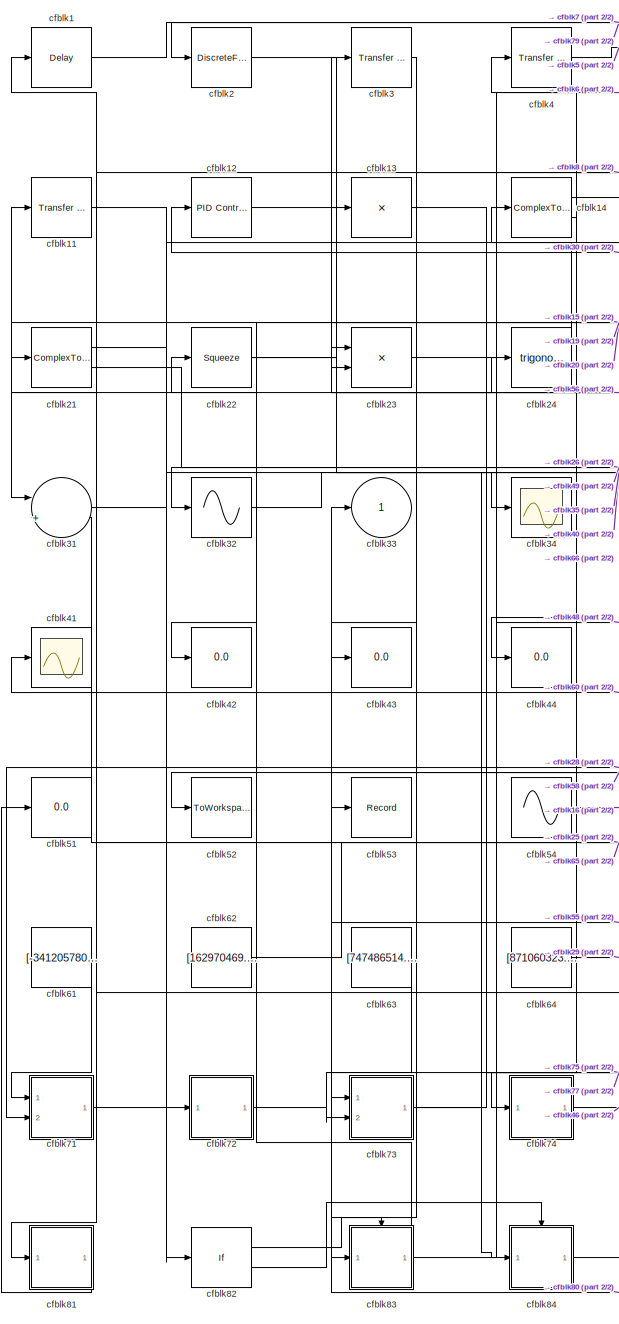
[diagram: root canvas - part 1/2, left side, full height]
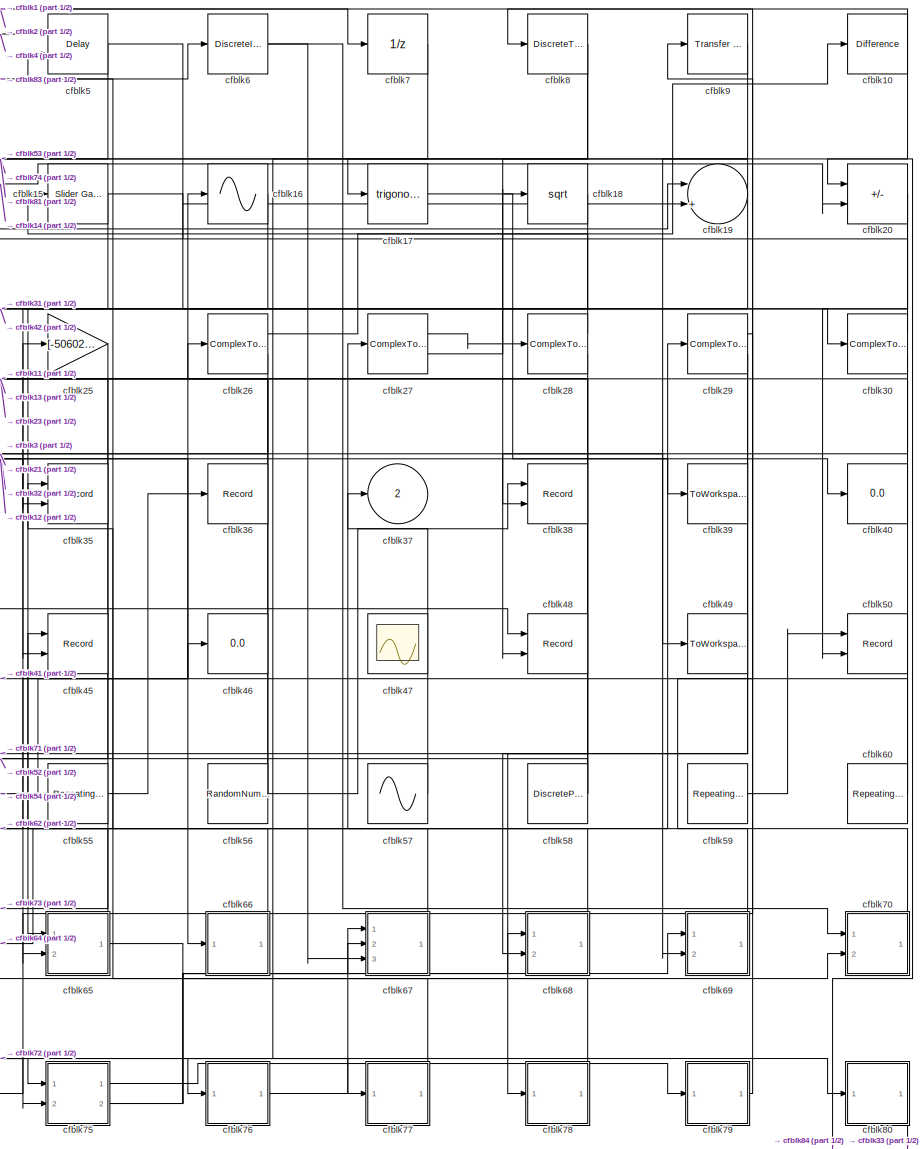
[diagram: root canvas - part 2/2, right side, full height]
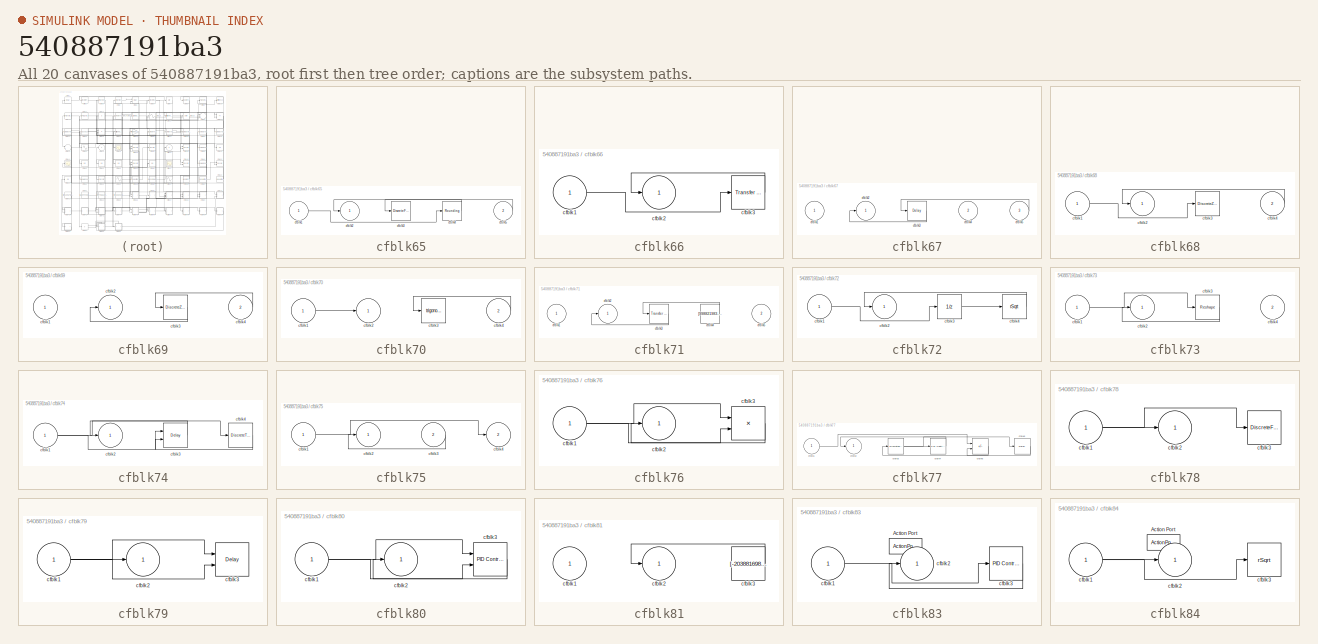
[diagram: thumbnail index - all 20 canvases of the model, root first then tree order]
MODEL slx_540887191ba3
KIND model
CONFIG AbsTol = auto
CONFIG EnableMultiTasking = off
CONFIG FixedStep = auto
CONFIG MaxStep = auto
CONFIG MinStep = auto
CONFIG RelTol = 1e-3
CONFIG SampleTimeConstraint = Unconstrained
CONFIG SolverName = VariableStepAuto
CONFIG StartTime = 0.0
CONFIG StopTime = 10.0
BLOCK [Delay] cfblk1
  InputPortMap = u0
  Ports = [1, 1]
  SampleTime = 1
BLOCK [Reference] cfblk10  REF=simulink/Discrete/Difference
  Ports = [1, 1]
  SourceBlock = simulink/Discrete/Difference
  SourceProductBaseCode = SL
  SourceType = Difference
BLOCK [Reference] cfblk11  REF=simulink/Discrete/Transfer Fcn
Lead or Lag
  Ports = [1, 1]
  SourceBlock = simulink/Discrete/Transfer Fcn\nLead or Lag
  SourceProductBaseCode = SL
  SourceType = Lead or Lag Compensator
BLOCK [Reference] cfblk12  REF=slpidlib/PID Controller
  Ports = [1, 1]
  SourceBlock = slpidlib/PID Controller
  SourceProductBaseCode = SL
  SourceType = PID 1dof
BLOCK [Product] cfblk13
  Inputs = *
  Ports = [1, 1]
BLOCK [ComplexToRealImag] cfblk14
  Ports = [1, 2]
BLOCK [Reference] cfblk15  REF=simulink/Math
Operations/Slider
Gain
  Ports = [1, 1]
  SourceBlock = simulink/Math\nOperations/Slider\nGain
  SourceProductBaseCode = SL
  SourceType = Slider Gain
BLOCK [Sin] cfblk16
  Ports = [1, 1]
  SampleTime = 0
  TimeSource = Use external signal
BLOCK [Trigonometry] cfblk17
  Ports = [1, 1]
BLOCK [Sqrt] cfblk18
BLOCK [Sum] cfblk19
  Inputs = |++
  Ports = [2, 1]
BLOCK [DiscreteFilter] cfblk2
  InputPortMap = u0
  Ports = [1, 1]
  SampleTime = 1
BLOCK [Sum] cfblk20
  IconShape = rectangular
  Inputs = -+
  Ports = [2, 1]
BLOCK [ComplexToRealImag] cfblk21
  Ports = [1, 2]
BLOCK [Squeeze] cfblk22
BLOCK [Product] cfblk23
  Inputs = **
  Ports = [2, 1]
BLOCK [Trigonometry] cfblk24
  Ports = [1, 1]
BLOCK [Gain] cfblk25
  Gain = [-506024098.081453]
BLOCK [ComplexToMagnitudeAngle] cfblk26
  Ports = [1, 2]
BLOCK [ComplexToRealImag] cfblk27
  Ports = [1, 2]
BLOCK [ComplexToRealImag] cfblk28
  Ports = [1, 2]
BLOCK [ComplexToMagnitudeAngle] cfblk29
  Ports = [1, 2]
BLOCK [Reference] cfblk3  REF=simulink/Discrete/Transfer Fcn
Lead or Lag
  Ports = [1, 1]
  SourceBlock = simulink/Discrete/Transfer Fcn\nLead or Lag
  SourceProductBaseCode = SL
  SourceType = Lead or Lag Compensator
BLOCK [ComplexToRealImag] cfblk30
  Ports = [1, 2]
BLOCK [Sum] cfblk31
  Inputs = |++
  Ports = [2, 1]
BLOCK [Sin] cfblk32
  Ports = [1, 1]
  SampleTime = 0
  TimeSource = Use external signal
BLOCK [Outport] cfblk33
BLOCK [Scope] cfblk34
  Floating = off
  NumInputPorts = 1
  Ports = [1]
BLOCK [Record] cfblk35
  CompatibilityTag = XY
  FileSettingsInternal = {"entries":[{"content":{"excelSettings":{"content":{},"type":"Streamout.ExcelSettings"}},"type":"Streamout.FileSettingStorage","uuid":"784594ac-7453-4d0e-99dc-230d746005aa"}],"packageUris":["http://schema.mathworks.com/mf0/streamout_blocks/R2020a"],"version":"1.0"}
  Layout = [1 1]
  Ports = [2]
  SignalsInternal = {"entries":[{"content":{"signals":[{"content":{"blockPath":["sampleModel240/cfblk35"],"channel":[],"dimensions":[1],"domain":"sampleModel240/cfblk35","lineColor":"#a2142f","plots":[1],"port":1,"sid":[""],"signalID":9509,"signalName":"cfblk78"},"type":"RecordBlkView.Signal","uuid":"67d133b5-3512-448e-9778-6e57d9e23972"},{"content":{"blockPath":["sampleModel240/cfblk35"],"channel":[],"dimensions":[1...<+383ch>
  VisualizationBindings = {"xyplotplugin":{"info":[{"series":[{"bindingParametersList":[{"parameter":"X-Axis","signalID":9509,"signalName":"cfblk78"},{"parameter":"Y-Axis","signalID":9513,"signalName":"cfblk11"}],"seriesID":32095}],"subplotID":1}]}}
BLOCK [Record] cfblk36
  FileSettingsInternal = {"entries":[{"content":{"excelSettings":{"content":{},"type":"Streamout.ExcelSettings"}},"type":"Streamout.FileSettingStorage","uuid":"b1a04026-dae7-46c6-8295-c1d018ed7cb2"}],"packageUris":["http://schema.mathworks.com/mf0/streamout_blocks/R2020a"],"version":"1.0"}
  Ports = [1]
  SignalsInternal = {"entries":[{"content":{"signals":[{"content":{"blockPath":["sampleModel240/cfblk36"],"channel":[],"dimensions":[1],"domain":"sampleModel240/cfblk36","lineColor":"#fe330a","plots":[1],"port":1,"sid":[""],"signalID":9517,"signalName":"cfblk55"},"type":"RecordBlkView.Signal","uuid":"e81319b0-4fc9-46b2-b889-44dd591dc2c1"}]},"type":"RecordBlkView.InputSignals","uuid":"d2d26a79-a2f7-4346-9dc2-1209bdb2f...<+97ch>
  VisualizationBindings = {"sparklinesplugin":{"info":[{"bindingParametersList":[],"subplotID":1}]}}
BLOCK [Outport] cfblk37
  Port = 2
BLOCK [Record] cfblk38
  CompatibilityTag = XY
  FileSettingsInternal = {"entries":[{"content":{"excelSettings":{"content":{},"type":"Streamout.ExcelSettings"}},"type":"Streamout.FileSettingStorage","uuid":"2b43e5d5-5da2-4669-81f9-69979c1bbe93"}],"packageUris":["http://schema.mathworks.com/mf0/streamout_blocks/R2020a"],"version":"1.0"}
  Layout = [1 1]
  Ports = [2]
  SignalsInternal = {"entries":[{"content":{"signals":[{"content":{"blockPath":["sampleModel240/cfblk38"],"channel":[],"dimensions":[1],"domain":"sampleModel240/cfblk38","lineColor":"#a2142f","plots":[1],"port":1,"sid":[""],"signalID":9521,"signalName":"cfblk56"},"type":"RecordBlkView.Signal","uuid":"72868b1f-4b0c-4be8-a2f7-40a7ef09af74"},{"content":{"blockPath":["sampleModel240/cfblk38"],"channel":[],"dimensions":[1...<+385ch>
  VisualizationBindings = {"xyplotplugin":{"info":[{"series":[{"bindingParametersList":[{"parameter":"X-Axis","signalID":9521,"signalName":"cfblk56"},{"parameter":"Y-Axis","signalID":9525,"signalName":"cfblk30:2"}],"seriesID":59541}],"subplotID":1}]}}
BLOCK [ToWorkspace] cfblk39
  FixptAsFi = on
  MaxDataPoints = inf
  Ports = [1]
  SampleTime = -1
  SaveFormat = Timeseries
  VariableName = ehjtfzd
BLOCK [Reference] cfblk4  REF=simulink/Discrete/Transfer Fcn
First Order
  Ports = [1, 1]
  SourceBlock = simulink/Discrete/Transfer Fcn\nFirst Order
  SourceProductBaseCode = SL
  SourceType = First Order Transfer Fcn
BLOCK [Display] cfblk40
  Decimation = 1
  Ports = [1]
BLOCK [Scope] cfblk41
  Floating = off
  NumInputPorts = 1
  Ports = [1]
BLOCK [Display] cfblk42
  Decimation = 1
  Ports = [1]
BLOCK [Display] cfblk43
  Decimation = 1
  Ports = [1]
BLOCK [Display] cfblk44
  Decimation = 1
  Ports = [1]
BLOCK [Record] cfblk45
  CompatibilityTag = XY
  FileSettingsInternal = {"entries":[{"content":{"excelSettings":{"content":{},"type":"Streamout.ExcelSettings"}},"type":"Streamout.FileSettingStorage","uuid":"011ed913-79cb-4d04-904d-059d5477b360"}],"packageUris":["http://schema.mathworks.com/mf0/streamout_blocks/R2020a"],"version":"1.0"}
  Layout = [1 1]
  Ports = [2]
  SignalsInternal = {"entries":[{"content":{"signals":[{"content":{"blockPath":["sampleModel240/cfblk45"],"channel":[],"dimensions":[1],"domain":"sampleModel240/cfblk45","lineColor":"#a2142f","plots":[1],"port":1,"sid":[""],"signalID":9529,"signalName":"cfblk67"},"type":"RecordBlkView.Signal","uuid":"2900f96a-5edd-414d-b1fc-4191916f856c"},{"content":{"blockPath":["sampleModel240/cfblk45"],"channel":[],"dimensions":[1...<+383ch>
  VisualizationBindings = {"xyplotplugin":{"info":[{"series":[{"bindingParametersList":[{"parameter":"X-Axis","signalID":9529,"signalName":"cfblk67"},{"parameter":"Y-Axis","signalID":9533,"signalName":"cfblk18"}],"seriesID":51705}],"subplotID":1}]}}
BLOCK [Display] cfblk46
  Decimation = 1
  Ports = [1]
BLOCK [Scope] cfblk47
  Floating = on
  NumInputPorts = 1
  Ports = []
BLOCK [Record] cfblk48
  CompatibilityTag = XY
  FileSettingsInternal = {"entries":[{"content":{"excelSettings":{"content":{},"type":"Streamout.ExcelSettings"}},"type":"Streamout.FileSettingStorage","uuid":"3f33d199-868f-4f88-8702-0c4e5cfbf297"}],"packageUris":["http://schema.mathworks.com/mf0/streamout_blocks/R2020a"],"version":"1.0"}
  Layout = [1 1]
  Ports = [2]
  SignalsInternal = {"entries":[{"content":{"signals":[{"content":{"blockPath":["sampleModel240/cfblk48"],"channel":[],"dimensions":[1],"domain":"sampleModel240/cfblk48","lineColor":"#a2142f","plots":[1],"port":1,"sid":[""],"signalID":9537,"signalName":"cfblk23"},"type":"RecordBlkView.Signal","uuid":"ef2c7adb-1fb0-4c30-94cd-a61b1754e238"},{"content":{"blockPath":["sampleModel240/cfblk48"],"channel":[],"dimensions":[1...<+382ch>
  VisualizationBindings = {"xyplotplugin":{"info":[{"series":[{"bindingParametersList":[{"parameter":"X-Axis","signalID":9537,"signalName":"cfblk23"},{"parameter":"Y-Axis","signalID":9541,"signalName":"cfblk8"}],"seriesID":9547}],"subplotID":1}]}}
BLOCK [ToWorkspace] cfblk49
  FixptAsFi = on
  MaxDataPoints = inf
  Ports = [1]
  SampleTime = -1
  SaveFormat = Timeseries
  VariableName = egvxahi
BLOCK [Delay] cfblk5
  InputPortMap = u0,e6
  Ports = [2, 1]
  SampleTime = 1
  ShowEnablePort = on
BLOCK [Record] cfblk50
  CompatibilityTag = XY
  FileSettingsInternal = {"entries":[{"content":{"excelSettings":{"content":{},"type":"Streamout.ExcelSettings"}},"type":"Streamout.FileSettingStorage","uuid":"a7323de5-4913-44b3-ba6b-b7b4a20015af"}],"packageUris":["http://schema.mathworks.com/mf0/streamout_blocks/R2020a"],"version":"1.0"}
  Layout = [1 1]
  Ports = [2]
  SignalsInternal = {"entries":[{"content":{"signals":[{"content":{"blockPath":["sampleModel240/cfblk50"],"channel":[],"dimensions":[1],"domain":"sampleModel240/cfblk50","lineColor":"#a2142f","plots":[1],"port":1,"sid":[""],"signalID":9545,"signalName":"cfblk59"},"type":"RecordBlkView.Signal","uuid":"c6728527-33a3-402b-b809-e9ba282c6234"},{"content":{"blockPath":["sampleModel240/cfblk50"],"channel":[],"dimensions":[1...<+383ch>
  VisualizationBindings = {"xyplotplugin":{"info":[{"series":[{"bindingParametersList":[{"parameter":"X-Axis","signalID":9545,"signalName":"cfblk59"},{"parameter":"Y-Axis","signalID":9549,"signalName":"cfblk20"}],"seriesID":24204}],"subplotID":1}]}}
BLOCK [Display] cfblk51
  Decimation = 1
  Ports = [1]
BLOCK [ToWorkspace] cfblk52
  FixptAsFi = on
  MaxDataPoints = inf
  Ports = [1]
  SampleTime = -1
  SaveFormat = Timeseries
  VariableName = amkuwht
BLOCK [Record] cfblk53
  FileSettingsInternal = {"entries":[{"content":{"excelSettings":{"content":{},"type":"Streamout.ExcelSettings"}},"type":"Streamout.FileSettingStorage","uuid":"062d2fcb-1db7-4794-8512-aa17b3a50389"}],"packageUris":["http://schema.mathworks.com/mf0/streamout_blocks/R2020a"],"version":"1.0"}
  Ports = [1]
  SignalsInternal = {"entries":[{"content":{"signals":[{"content":{"blockPath":["sampleModel240/cfblk53"],"channel":[],"dimensions":[1],"domain":"sampleModel240/cfblk53","lineColor":"#139fff","plots":[1],"port":1,"sid":[""],"signalID":9553,"signalName":"cfblk5"},"type":"RecordBlkView.Signal","uuid":"004bb81a-6ea3-4587-b6bd-6712f3703243"}]},"type":"RecordBlkView.InputSignals","uuid":"4f08d72a-b7cb-43bf-9134-c95f940a5c...<+96ch>
  VisualizationBindings = {"sparklinesplugin":{"info":[{"bindingParametersList":[],"subplotID":1}]}}
BLOCK [Sin] cfblk54
  Amplitude = [927282513.188277]
  Bias = [-745493718.771142]
  Ports = [0, 1]
  SampleTime = 0
BLOCK [Reference] cfblk55  REF=simulink/Sources/Repeating
Sequence
Interpolated
  Ports = [0, 1]
  SourceBlock = simulink/Sources/Repeating\nSequence\nInterpolated
  SourceProductBaseCode = SL
  SourceType = Repeating Sequence Interpolated
BLOCK [RandomNumber] cfblk56
  Mean = [-10045.091864]
  SampleTime = 0.1
  Seed = [426711266.000000]
  Variance = [72480.359942]
BLOCK [Sin] cfblk57
  Amplitude = [314477199.179577]
  Bias = [-113427137.959207]
  Ports = [0, 1]
  SampleTime = 0
BLOCK [DiscretePulseGenerator] cfblk58
  Amplitude = [121664850.347592]
  Period = [59251250.117236]
  PhaseDelay = [3.000000]
  Ports = [0, 1]
  PulseType = Time based
  PulseWidth = 5
BLOCK [Reference] cfblk59  REF=simulink/Sources/Repeating
Sequence
Interpolated
  Ports = [0, 1]
  SourceBlock = simulink/Sources/Repeating\nSequence\nInterpolated
  SourceProductBaseCode = SL
  SourceType = Repeating Sequence Interpolated
BLOCK [DiscreteIntegrator] cfblk6
  ICPrevOutput = DiscIntNeverNeededParam
  ICPrevScaledInput = DiscIntNeverNeededParam
  InitialConditionSetting = Auto
  Ports = [1, 1]
BLOCK [Reference] cfblk60  REF=simulink/Sources/Repeating
Sequence
Interpolated
  Ports = [0, 1]
  SourceBlock = simulink/Sources/Repeating\nSequence\nInterpolated
  SourceProductBaseCode = SL
  SourceType = Repeating Sequence Interpolated
BLOCK [Constant] cfblk61
  SampleTime = 1
  Value = [-341205780.351297]
BLOCK [Constant] cfblk62
  SampleTime = 1
  Value = [162970469.814990]
BLOCK [Constant] cfblk63
  SampleTime = 1
  Value = [747486514.530427]
BLOCK [Constant] cfblk64
  SampleTime = 1
  Value = [871060323.117650]
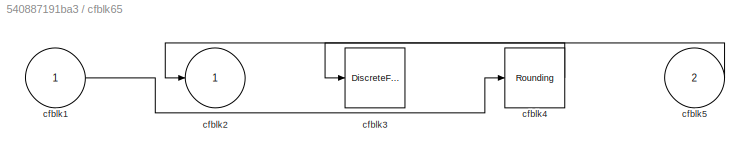
BLOCK [SubSystem] cfblk65
  Ports = [2, 1]
  RequestExecContextInheritance = off
BLOCK [Inport] cfblk65/cfblk1
BLOCK [Outport] cfblk65/cfblk2
BLOCK [DiscreteFir] cfblk65/cfblk3
  InputPortMap = u0
  OutputPortMap = o0
  Ports = [1, 1]
  SampleTime = 1
BLOCK [Rounding] cfblk65/cfblk4
BLOCK [Inport] cfblk65/cfblk5
  Port = 2
BLOCK [SubSystem] cfblk66
  Ports = [1, 1]
  RequestExecContextInheritance = off
BLOCK [Inport] cfblk66/cfblk1
BLOCK [Outport] cfblk66/cfblk2
BLOCK [Reference] cfblk66/cfblk3  REF=simulink/Discrete/Transfer Fcn
Lead or Lag
  Ports = [1, 1]
  SourceBlock = simulink/Discrete/Transfer Fcn\nLead or Lag
  SourceProductBaseCode = SL
  SourceType = Lead or Lag Compensator
BLOCK [SubSystem] cfblk67
  Ports = [3, 1]
  RequestExecContextInheritance = off
BLOCK [Inport] cfblk67/cfblk1
BLOCK [Outport] cfblk67/cfblk2
BLOCK [Delay] cfblk67/cfblk3
  InputPortMap = u0
  Ports = [1, 1]
  SampleTime = 1
BLOCK [Inport] cfblk67/cfblk4
  Port = 2
BLOCK [Inport] cfblk67/cfblk5
  Port = 3
BLOCK [SubSystem] cfblk68
  Ports = [2, 1]
  RequestExecContextInheritance = off
BLOCK [Inport] cfblk68/cfblk1
BLOCK [Outport] cfblk68/cfblk2
BLOCK [DiscreteZeroPole] cfblk68/cfblk3
  Gain = 1
  Poles = [0 0.5]
BLOCK [Inport] cfblk68/cfblk4
  Port = 2
BLOCK [SubSystem] cfblk69
  Ports = [2, 1]
  RequestExecContextInheritance = off
BLOCK [Inport] cfblk69/cfblk1
BLOCK [Outport] cfblk69/cfblk2
BLOCK [DiscreteZeroPole] cfblk69/cfblk3
  Gain = 1
  Poles = [0 0.5]
BLOCK [Inport] cfblk69/cfblk4
  Port = 2
BLOCK [UnitDelay] cfblk7
  HasFrameUpgradeWarning = on
BLOCK [SubSystem] cfblk70
  Ports = [2, 1]
  RequestExecContextInheritance = off
BLOCK [Inport] cfblk70/cfblk1
BLOCK [Outport] cfblk70/cfblk2
BLOCK [Trigonometry] cfblk70/cfblk3
  Ports = [1, 1]
BLOCK [Inport] cfblk70/cfblk4
  Port = 2
BLOCK [SubSystem] cfblk71
  Ports = [2, 1]
  RequestExecContextInheritance = off
BLOCK [Inport] cfblk71/cfblk1
BLOCK [Outport] cfblk71/cfblk2
BLOCK [Reference] cfblk71/cfblk3  REF=simulink/Discrete/Transfer Fcn
Lead or Lag
  Ports = [1, 1]
  SourceBlock = simulink/Discrete/Transfer Fcn\nLead or Lag
  SourceProductBaseCode = SL
  SourceType = Lead or Lag Compensator
BLOCK [Constant] cfblk71/cfblk4
  SampleTime = 1
  Value = [998821983.566058]
BLOCK [Inport] cfblk71/cfblk5
  Port = 2
BLOCK [SubSystem] cfblk72
  Ports = [1, 1]
  RequestExecContextInheritance = off
BLOCK [Inport] cfblk72/cfblk1
BLOCK [Outport] cfblk72/cfblk2
BLOCK [UnitDelay] cfblk72/cfblk3
  HasFrameUpgradeWarning = on
BLOCK [Sqrt] cfblk72/cfblk4
  AlgorithmType = Newton-Raphson
  Operator = rSqrt
BLOCK [SubSystem] cfblk73
  Ports = [2, 1]
  RequestExecContextInheritance = off
BLOCK [Inport] cfblk73/cfblk1
BLOCK [Outport] cfblk73/cfblk2
BLOCK [Reshape] cfblk73/cfblk3
  Ports = [1, 1]
BLOCK [Inport] cfblk73/cfblk4
  Port = 2
BLOCK [SubSystem] cfblk74
  Ports = [1, 1]
  RequestExecContextInheritance = off
BLOCK [Inport] cfblk74/cfblk1
BLOCK [Outport] cfblk74/cfblk2
BLOCK [Delay] cfblk74/cfblk3
  DelayLengthSource = Input port
  InputPortMap = u0,p1
  Ports = [2, 1]
  SampleTime = 1
BLOCK [DiscreteTransferFcn] cfblk74/cfblk4
  InputPortMap = u0
  Ports = [1, 1]
  SampleTime = 1
BLOCK [SubSystem] cfblk75
  Ports = [2, 2]
  RequestExecContextInheritance = off
BLOCK [Inport] cfblk75/cfblk1
BLOCK [Outport] cfblk75/cfblk2
BLOCK [Inport] cfblk75/cfblk3
  Port = 2
BLOCK [Outport] cfblk75/cfblk4
  Port = 2
BLOCK [SubSystem] cfblk76
  Ports = [1, 1]
  RequestExecContextInheritance = off
BLOCK [Inport] cfblk76/cfblk1
BLOCK [Outport] cfblk76/cfblk2
BLOCK [Product] cfblk76/cfblk3
  Inputs = **
  Ports = [2, 1]
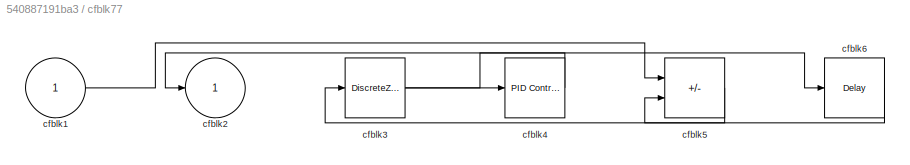
BLOCK [SubSystem] cfblk77
  Ports = [1, 1]
  RequestExecContextInheritance = off
BLOCK [Inport] cfblk77/cfblk1
BLOCK [Outport] cfblk77/cfblk2
BLOCK [DiscreteZeroPole] cfblk77/cfblk3
  Gain = 1
  Poles = [0 0.5]
BLOCK [Reference] cfblk77/cfblk4  REF=slpidlib/PID Controller
  Ports = [1, 1]
  SourceBlock = slpidlib/PID Controller
  SourceProductBaseCode = SL
  SourceType = PID 1dof
BLOCK [Sum] cfblk77/cfblk5
  IconShape = rectangular
  Inputs = --
  Ports = [2, 1]
BLOCK [Delay] cfblk77/cfblk6
  InputPortMap = u0
  Ports = [1, 1]
  SampleTime = 1
BLOCK [SubSystem] cfblk78
  Ports = [1, 1]
  RequestExecContextInheritance = off
BLOCK [Inport] cfblk78/cfblk1
BLOCK [Outport] cfblk78/cfblk2
BLOCK [DiscreteFir] cfblk78/cfblk3
  InputPortMap = u0
  OutputPortMap = o0
  Ports = [1, 1]
  SampleTime = 1
BLOCK [SubSystem] cfblk79
  Ports = [1, 1]
  RequestExecContextInheritance = off
BLOCK [Inport] cfblk79/cfblk1
BLOCK [Outport] cfblk79/cfblk2
BLOCK [Delay] cfblk79/cfblk3
  DelayLengthSource = Input port
  InputPortMap = u0,p1
  Ports = [2, 1]
  SampleTime = 1
BLOCK [DiscreteTransferFcn] cfblk8
  InputPortMap = u0
  Ports = [1, 1]
  SampleTime = 1
BLOCK [SubSystem] cfblk80
  Ports = [1, 1]
  RequestExecContextInheritance = off
BLOCK [Inport] cfblk80/cfblk1
BLOCK [Outport] cfblk80/cfblk2
BLOCK [Reference] cfblk80/cfblk3  REF=slpidlib/PID Controller (2DOF)
  Ports = [2, 1]
  SourceBlock = slpidlib/PID Controller (2DOF)
  SourceProductBaseCode = SL
  SourceType = PID 2dof
BLOCK [SubSystem] cfblk81
  Ports = [1, 1]
  RequestExecContextInheritance = off
BLOCK [Inport] cfblk81/cfblk1
BLOCK [Outport] cfblk81/cfblk2
BLOCK [Constant] cfblk81/cfblk3
  SampleTime = 1
  Value = [-203881698.198706]
BLOCK [If] cfblk82
  IfExpression = u1 >= 0
  Ports = [1, 2]
  SampleTime = 1
BLOCK [SubSystem] cfblk83
  Ports = [1, 1, 0, 0, 0, 0, 0, 1]
  RequestExecContextInheritance = off
  TreatAsAtomicUnit = on
BLOCK [ActionPort] cfblk83/Action Port
  ActionPortLabel = if(u1 >= 0)
BLOCK [Inport] cfblk83/cfblk1
BLOCK [Outport] cfblk83/cfblk2
BLOCK [Reference] cfblk83/cfblk3  REF=slpidlib/PID Controller
  Ports = [1, 1]
  SourceBlock = slpidlib/PID Controller
  SourceProductBaseCode = SL
  SourceType = PID 1dof
BLOCK [SubSystem] cfblk84
  Ports = [1, 1, 0, 0, 0, 0, 0, 1]
  RequestExecContextInheritance = off
  TreatAsAtomicUnit = on
BLOCK [ActionPort] cfblk84/Action Port
  ActionPortLabel = else
BLOCK [Inport] cfblk84/cfblk1
BLOCK [Outport] cfblk84/cfblk2
BLOCK [Sqrt] cfblk84/cfblk3
  AlgorithmType = Newton-Raphson
  Operator = rSqrt
BLOCK [Reference] cfblk9  REF=simulink/Discrete/Transfer Fcn
Real Zero
  Ports = [1, 1]
  SourceBlock = simulink/Discrete/Transfer Fcn\nReal Zero
  SourceProductBaseCode = SL
  SourceType = Transfer Fcn Real Zero
NET cfblk10:1 -> cfblk69:2, cfblk8:1
LINE cfblk11:1 -> cfblk35:2
LINE cfblk12:1 -> cfblk66:1
LINE cfblk13:1 -> cfblk75:2
LINE cfblk14:1 -> cfblk20:2
LINE cfblk14:2 -> cfblk44:1
NET cfblk15:1 -> cfblk30:1, cfblk31:1
LINE cfblk16:1 -> cfblk65:1
LINE cfblk17:1 -> cfblk39:1
LINE cfblk18:1 -> cfblk45:2
NET cfblk19:1 -> cfblk17:1, cfblk23:1
LINE cfblk1:1 -> cfblk7:1
NET cfblk20:1 -> cfblk42:1, cfblk50:2
LINE cfblk21:1 -> cfblk82:1
LINE cfblk21:2 -> cfblk49:1
NET cfblk22:1 -> cfblk24:1, cfblk34:1
LINE cfblk23:1 -> cfblk48:1
LINE cfblk24:1 -> cfblk14:1
LINE cfblk25:1 -> cfblk83:1
LINE cfblk26:1 -> cfblk10:1
LINE cfblk26:2 -> cfblk32:1
LINE cfblk27:1 -> cfblk28:1
LINE cfblk27:2 -> cfblk18:1
LINE cfblk28:1 -> cfblk15:1
LINE cfblk28:2 -> cfblk71:2
LINE cfblk29:1 -> cfblk65:2
NET cfblk29:2 -> cfblk68:2, cfblk78:1
LINE cfblk2:1 -> cfblk40:1
LINE cfblk30:1 -> cfblk12:1
LINE cfblk30:2 -> cfblk38:2
LINE cfblk31:1 -> cfblk19:1
LINE cfblk32:1 -> cfblk84:1
LINE cfblk3:1 -> cfblk43:1
LINE cfblk4:1 -> cfblk5:1
LINE cfblk54:1 -> cfblk16:1
NET cfblk55:1 -> cfblk36:1, cfblk3:1, cfblk73:1
NET cfblk56:1 -> cfblk26:1, cfblk38:1, cfblk4:1
LINE cfblk57:1 -> cfblk37:1
NET cfblk58:1 -> cfblk11:1, cfblk23:2, cfblk52:1
LINE cfblk59:1 -> cfblk50:1
NET cfblk5:1 -> cfblk19:2, cfblk53:1
NET cfblk60:1 -> cfblk13:1, cfblk41:1
LINE cfblk61:1 -> cfblk71:1
LINE cfblk62:1 -> cfblk25:1
LINE cfblk63:1 -> cfblk73:2
LINE cfblk64:1 -> cfblk29:1
LINE cfblk65/cfblk1:1 -> cfblk65/cfblk4:1
LINE cfblk65/cfblk4:1 -> cfblk65/cfblk2:1
LINE cfblk65/cfblk5:1 -> cfblk65/cfblk3:1
NET cfblk65:1 -> cfblk1:1, cfblk70:2
LINE cfblk66/cfblk1:1 -> cfblk66/cfblk3:1
LINE cfblk66/cfblk3:1 -> cfblk66/cfblk2:1
LINE cfblk66:1 -> cfblk31:2
LINE cfblk67/cfblk3:1 -> cfblk67/cfblk2:1
LINE cfblk67/cfblk5:1 -> cfblk67/cfblk3:1
LINE cfblk67:1 -> cfblk45:1
LINE cfblk68/cfblk1:1 -> cfblk68/cfblk3:1
LINE cfblk68/cfblk4:1 -> cfblk68/cfblk2:1
LINE cfblk68:1 -> cfblk27:1
LINE cfblk69/cfblk3:1 -> cfblk69/cfblk2:1
LINE cfblk69/cfblk4:1 -> cfblk69/cfblk3:1
LINE cfblk69:1 -> cfblk5:2
NET cfblk6:1 -> cfblk67:3, cfblk70:1
LINE cfblk70/cfblk1:1 -> cfblk70/cfblk2:1
LINE cfblk70/cfblk4:1 -> cfblk70/cfblk3:1
LINE cfblk70:1 -> cfblk9:1
LINE cfblk71/cfblk3:1 -> cfblk71/cfblk2:1
LINE cfblk71/cfblk4:1 -> cfblk71/cfblk3:1
LINE cfblk71:1 -> cfblk72:1
LINE cfblk72/cfblk1:1 -> cfblk72/cfblk3:1
LINE cfblk72/cfblk3:1 -> cfblk72/cfblk4:1
LINE cfblk72/cfblk4:1 -> cfblk72/cfblk2:1
LINE cfblk72:1 -> cfblk80:1
LINE cfblk73/cfblk1:1 -> cfblk73/cfblk3:1
LINE cfblk73/cfblk3:1 -> cfblk73/cfblk2:1
NET cfblk73:1 -> cfblk75:1, cfblk77:1
NET cfblk74/cfblk1:1 -> cfblk74/cfblk3:2, cfblk74/cfblk4:1
LINE cfblk74/cfblk3:1 -> cfblk74/cfblk2:1
LINE cfblk74/cfblk4:1 -> cfblk74/cfblk3:1
LINE cfblk74:1 -> cfblk46:1
LINE cfblk75/cfblk1:1 -> cfblk75/cfblk4:1
LINE cfblk75/cfblk3:1 -> cfblk75/cfblk2:1
LINE cfblk75:1 -> cfblk79:1
NET cfblk75:2 -> cfblk67:2, cfblk68:1, cfblk69:1
NET cfblk76/cfblk1:1 -> cfblk76/cfblk3:1, cfblk76/cfblk3:2
LINE cfblk76/cfblk3:1 -> cfblk76/cfblk2:1
LINE cfblk76:1 -> cfblk67:1
LINE cfblk77/cfblk1:1 -> cfblk77/cfblk5:1
NET cfblk77/cfblk3:1 -> cfblk77/cfblk4:1, cfblk77/cfblk6:1
LINE cfblk77/cfblk4:1 -> cfblk77/cfblk2:1
LINE cfblk77/cfblk5:1 -> cfblk77/cfblk3:1
LINE cfblk77/cfblk6:1 -> cfblk77/cfblk5:2
LINE cfblk77:1 -> cfblk21:1
NET cfblk78/cfblk1:1 -> cfblk78/cfblk2:1, cfblk78/cfblk3:1
LINE cfblk78:1 -> cfblk35:1
NET cfblk79/cfblk1:1 -> cfblk79/cfblk2:1, cfblk79/cfblk3:1, cfblk79/cfblk3:2
LINE cfblk79:1 -> cfblk2:1
LINE cfblk7:1 -> cfblk81:1
NET cfblk80/cfblk1:1 -> cfblk80/cfblk3:1, cfblk80/cfblk3:2
LINE cfblk80/cfblk3:1 -> cfblk80/cfblk2:1
LINE cfblk80:1 -> cfblk33:1
LINE cfblk81/cfblk3:1 -> cfblk81/cfblk2:1
LINE cfblk81:1 -> cfblk51:1
LINE cfblk82:1 -> cfblk83:ifaction
LINE cfblk82:2 -> cfblk84:ifaction
LINE cfblk83/cfblk1:1 -> cfblk83/cfblk3:1
LINE cfblk83/cfblk3:1 -> cfblk83/cfblk2:1
NET cfblk83:1 -> cfblk22:1, cfblk6:1
NET cfblk84/cfblk1:1 -> cfblk84/cfblk2:1, cfblk84/cfblk3:1
LINE cfblk84:1 -> cfblk20:1
NET cfblk8:1 -> cfblk48:2, cfblk74:1
LINE cfblk9:1 -> cfblk76:1
note: NET lines group one-source signal fan-out (src -> all destinations, sorted); 1:1 wires keep LINE
